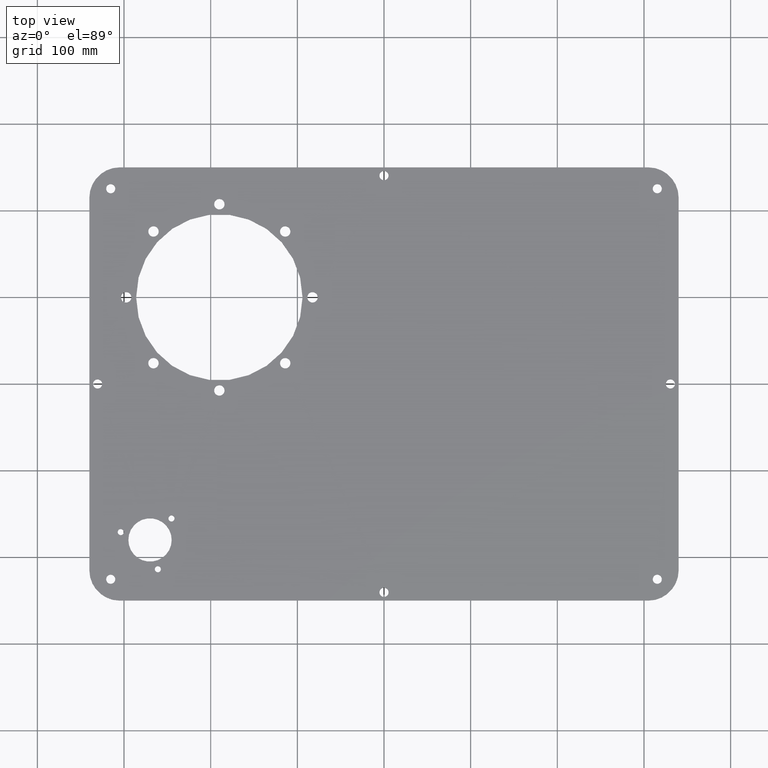
[diagram: clean part render]
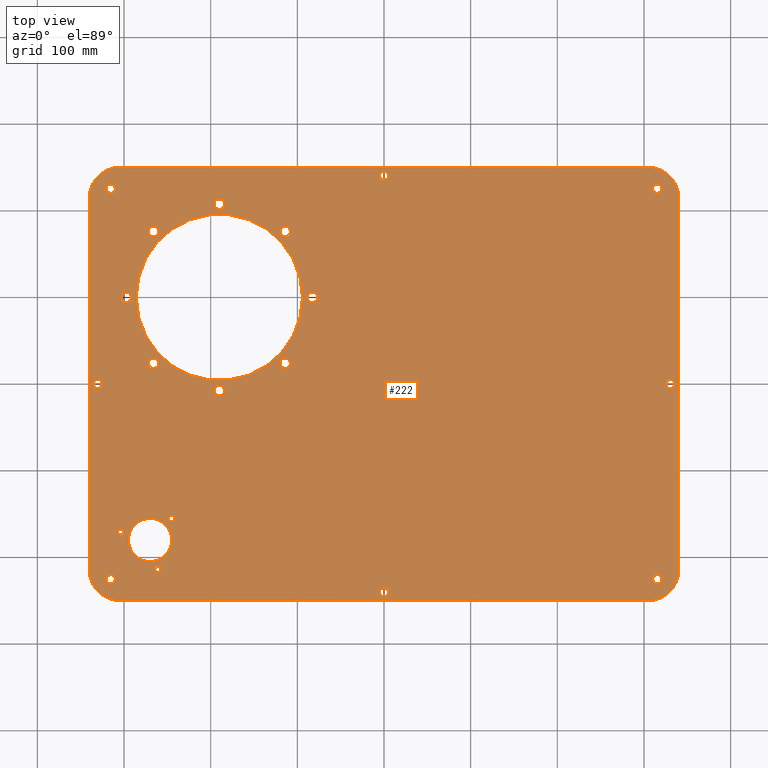
[diagram: same view with one face highlighted and labeled with its STEP entity id]
A machine part, top view. The second image highlights one B-rep face of the part: STEP entity #222.
In plain terms, the highlighted planar face has unit normal (0, 0, 1).
Its self-contained STEP definition (entity closure, byte-faithful):
#76=FACE_BOUND('',#291,.T.);
#77=FACE_BOUND('',#292,.T.);
#78=FACE_BOUND('',#293,.T.);
#79=FACE_BOUND('',#294,.T.);
#80=FACE_BOUND('',#295,.T.);
#81=FACE_BOUND('',#296,.T.);
#82=FACE_BOUND('',#297,.T.);
#83=FACE_BOUND('',#298,.T.);
#84=FACE_BOUND('',#299,.T.);
#85=FACE_BOUND('',#300,.T.);
#86=FACE_BOUND('',#301,.T.);
#87=FACE_BOUND('',#302,.T.);
#88=FACE_BOUND('',#303,.T.);
#89=FACE_BOUND('',#304,.T.);
#90=FACE_BOUND('',#305,.T.);
#91=FACE_BOUND('',#306,.T.);
#92=FACE_BOUND('',#307,.T.);
#93=FACE_BOUND('',#308,.T.);
#94=FACE_BOUND('',#309,.T.);
#95=FACE_BOUND('',#310,.T.);
#96=FACE_BOUND('',#311,.T.);
#144=CIRCLE('',#625,35.);
#146=CIRCLE('',#629,35.);
#148=CIRCLE('',#633,35.);
#149=CIRCLE('',#636,6.);
#151=CIRCLE('',#639,5.25);
#153=CIRCLE('',#642,5.25);
#155=CIRCLE('',#645,96.);
#157=CIRCLE('',#648,6.);
#159=CIRCLE('',#651,6.);
#161=CIRCLE('',#654,5.25);
#163=CIRCLE('',#657,5.25);
#165=CIRCLE('',#660,5.25);
#167=CIRCLE('',#663,25.);
#169=CIRCLE('',#666,3.5);
#171=CIRCLE('',#669,5.25);
#173=CIRCLE('',#672,5.25);
#175=CIRCLE('',#675,5.25);
#177=CIRCLE('',#678,6.);
#179=CIRCLE('',#681,6.);
#181=CIRCLE('',#684,6.);
#183=CIRCLE('',#687,6.);
#185=CIRCLE('',#690,3.5);
#187=CIRCLE('',#693,3.5);
#190=CIRCLE('',#697,35.);
#191=CIRCLE('',#699,6.);
#222=ADVANCED_FACE('',(#238,#76,#77,#78,#79,#80,#81,#82,#83,#84,#85,#86,
#87,#88,#89,#90,#91,#92,#93,#94,#95,#96),#228,.T.);
#228=PLANE('',#702);
#238=FACE_OUTER_BOUND('',#290,.T.);
#290=EDGE_LOOP('',(#408,#409,#410,#411,#412,#413,#414,#415));
#291=EDGE_LOOP('',(#416));
#292=EDGE_LOOP('',(#417));
#293=EDGE_LOOP('',(#418));
#294=EDGE_LOOP('',(#419));
#295=EDGE_LOOP('',(#420));
#296=EDGE_LOOP('',(#421));
#297=EDGE_LOOP('',(#422));
#298=EDGE_LOOP('',(#423));
#299=EDGE_LOOP('',(#424));
#300=EDGE_LOOP('',(#425));
#301=EDGE_LOOP('',(#426));
#302=EDGE_LOOP('',(#427));
#303=EDGE_LOOP('',(#428));
#304=EDGE_LOOP('',(#429));
#305=EDGE_LOOP('',(#430));
#306=EDGE_LOOP('',(#431));
#307=EDGE_LOOP('',(#432));
#308=EDGE_LOOP('',(#433));
#309=EDGE_LOOP('',(#434));
#310=EDGE_LOOP('',(#435));
#311=EDGE_LOOP('',(#436));
#408=ORIENTED_EDGE('',*,*,#526,.T.);
#409=ORIENTED_EDGE('',*,*,#530,.T.);
#410=ORIENTED_EDGE('',*,*,#533,.T.);
#411=ORIENTED_EDGE('',*,*,#536,.T.);
#412=ORIENTED_EDGE('',*,*,#539,.T.);
#413=ORIENTED_EDGE('',*,*,#542,.T.);
#414=ORIENTED_EDGE('',*,*,#545,.T.);
#415=ORIENTED_EDGE('',*,*,#587,.T.);
#416=ORIENTED_EDGE('',*,*,#584,.T.);
#417=ORIENTED_EDGE('',*,*,#582,.T.);
#418=ORIENTED_EDGE('',*,*,#580,.F.);
#419=ORIENTED_EDGE('',*,*,#578,.F.);
#420=ORIENTED_EDGE('',*,*,#576,.F.);
#421=ORIENTED_EDGE('',*,*,#574,.F.);
#422=ORIENTED_EDGE('',*,*,#572,.F.);
#423=ORIENTED_EDGE('',*,*,#570,.T.);
#424=ORIENTED_EDGE('',*,*,#568,.F.);
#425=ORIENTED_EDGE('',*,*,#566,.T.);
#426=ORIENTED_EDGE('',*,*,#564,.T.);
#427=ORIENTED_EDGE('',*,*,#562,.T.);
#428=ORIENTED_EDGE('',*,*,#560,.F.);
#429=ORIENTED_EDGE('',*,*,#558,.F.);
#430=ORIENTED_EDGE('',*,*,#556,.F.);
#431=ORIENTED_EDGE('',*,*,#554,.F.);
#432=ORIENTED_EDGE('',*,*,#552,.F.);
#433=ORIENTED_EDGE('',*,*,#550,.T.);
#434=ORIENTED_EDGE('',*,*,#548,.T.);
#435=ORIENTED_EDGE('',*,*,#546,.F.);
#436=ORIENTED_EDGE('',*,*,#588,.F.);
#468=VERTEX_POINT('',#889);
#469=VERTEX_POINT('',#891);
#471=VERTEX_POINT('',#897);
#473=VERTEX_POINT('',#903);
#475=VERTEX_POINT('',#909);
#477=VERTEX_POINT('',#915);
#479=VERTEX_POINT('',#921);
#481=VERTEX_POINT('',#927);
#482=VERTEX_POINT('',#931);
#484=VERTEX_POINT('',#936);
#486=VERTEX_POINT('',#941);
#488=VERTEX_POINT('',#946);
#490=VERTEX_POINT('',#951);
#492=VERTEX_POINT('',#956);
#494=VERTEX_POINT('',#961);
#496=VERTEX_POINT('',#966);
#498=VERTEX_POINT('',#971);
#500=VERTEX_POINT('',#976);
#502=VERTEX_POINT('',#981);
#504=VERTEX_POINT('',#986);
#506=VERTEX_POINT('',#991);
#508=VERTEX_POINT('',#996);
#510=VERTEX_POINT('',#1001);
#512=VERTEX_POINT('',#1006);
#514=VERTEX_POINT('',#1011);
#516=VERTEX_POINT('',#1016);
#518=VERTEX_POINT('',#1021);
#520=VERTEX_POINT('',#1026);
#522=VERTEX_POINT('',#1034);
#526=EDGE_CURVE('',#469,#468,#592,.T.);
#530=EDGE_CURVE('',#468,#471,#144,.T.);
#533=EDGE_CURVE('',#471,#473,#597,.T.);
#536=EDGE_CURVE('',#473,#475,#146,.T.);
#539=EDGE_CURVE('',#475,#477,#601,.T.);
#542=EDGE_CURVE('',#477,#479,#148,.T.);
#545=EDGE_CURVE('',#479,#481,#605,.T.);
#546=EDGE_CURVE('',#482,#482,#149,.T.);
#548=EDGE_CURVE('',#484,#484,#151,.T.);
#550=EDGE_CURVE('',#486,#486,#153,.T.);
#552=EDGE_CURVE('',#488,#488,#155,.T.);
#554=EDGE_CURVE('',#490,#490,#157,.T.);
#556=EDGE_CURVE('',#492,#492,#159,.T.);
#558=EDGE_CURVE('',#494,#494,#161,.T.);
#560=EDGE_CURVE('',#496,#496,#163,.T.);
#562=EDGE_CURVE('',#498,#498,#165,.T.);
#564=EDGE_CURVE('',#500,#500,#167,.T.);
#566=EDGE_CURVE('',#502,#502,#169,.T.);
#568=EDGE_CURVE('',#504,#504,#171,.T.);
#570=EDGE_CURVE('',#506,#506,#173,.T.);
#572=EDGE_CURVE('',#508,#508,#175,.T.);
#574=EDGE_CURVE('',#510,#510,#177,.T.);
#576=EDGE_CURVE('',#512,#512,#179,.T.);
#578=EDGE_CURVE('',#514,#514,#181,.T.);
#580=EDGE_CURVE('',#516,#516,#183,.T.);
#582=EDGE_CURVE('',#518,#518,#185,.T.);
#584=EDGE_CURVE('',#520,#520,#187,.T.);
#587=EDGE_CURVE('',#481,#469,#190,.T.);
#588=EDGE_CURVE('',#522,#522,#191,.T.);
#592=LINE('',#890,#608);
#597=LINE('',#904,#613);
#601=LINE('',#916,#617);
#605=LINE('',#928,#621);
#608=VECTOR('',#708,1.);
#613=VECTOR('',#721,1.);
#617=VECTOR('',#733,1.);
#621=VECTOR('',#745,1.);
#625=AXIS2_PLACEMENT_3D('',#898,#715,#716);
#629=AXIS2_PLACEMENT_3D('',#910,#727,#728);
#633=AXIS2_PLACEMENT_3D('',#922,#739,#740);
#636=AXIS2_PLACEMENT_3D('',#930,#748,#749);
#639=AXIS2_PLACEMENT_3D('',#935,#754,#755);
#642=AXIS2_PLACEMENT_3D('',#940,#760,#761);
#645=AXIS2_PLACEMENT_3D('',#945,#766,#767);
#648=AXIS2_PLACEMENT_3D('',#950,#772,#773);
#651=AXIS2_PLACEMENT_3D('',#955,#778,#779);
#654=AXIS2_PLACEMENT_3D('',#960,#784,#785);
#657=AXIS2_PLACEMENT_3D('',#965,#790,#791);
#660=AXIS2_PLACEMENT_3D('',#970,#796,#797);
#663=AXIS2_PLACEMENT_3D('',#975,#802,#803);
#666=AXIS2_PLACEMENT_3D('',#980,#808,#809);
#669=AXIS2_PLACEMENT_3D('',#985,#814,#815);
#672=AXIS2_PLACEMENT_3D('',#990,#820,#821);
#675=AXIS2_PLACEMENT_3D('',#995,#826,#827);
#678=AXIS2_PLACEMENT_3D('',#1000,#832,#833);
#681=AXIS2_PLACEMENT_3D('',#1005,#838,#839);
#684=AXIS2_PLACEMENT_3D('',#1010,#844,#845);
#687=AXIS2_PLACEMENT_3D('',#1015,#850,#851);
#690=AXIS2_PLACEMENT_3D('',#1020,#856,#857);
#693=AXIS2_PLACEMENT_3D('',#1025,#862,#863);
#697=AXIS2_PLACEMENT_3D('',#1031,#870,#871);
#699=AXIS2_PLACEMENT_3D('',#1033,#874,#875);
#702=AXIS2_PLACEMENT_3D('',#1038,#880,#881);
#708=DIRECTION('',(0.,-1.,0.));
#715=DIRECTION('',(0.,0.,1.));
#716=DIRECTION('',(0.999999999999999,0.,0.));
#721=DIRECTION('',(1.,0.,0.));
#727=DIRECTION('',(0.,0.,1.));
#728=DIRECTION('',(0.999999999999999,0.,0.));
#733=DIRECTION('',(0.,1.,0.));
#739=DIRECTION('',(0.,0.,1.));
#740=DIRECTION('',(0.999999999999999,0.,0.));
#745=DIRECTION('',(-1.,0.,0.));
#748=DIRECTION('',(0.,0.,1.));
#749=DIRECTION('',(1.,0.,0.));
#754=DIRECTION('',(0.,0.,-1.));
#755=DIRECTION('',(-0.999999999999996,0.,0.));
#760=DIRECTION('',(0.,0.,-1.));
#761=DIRECTION('',(1.,0.,0.));
#766=DIRECTION('',(0.,0.,1.));
#767=DIRECTION('',(1.,0.,0.));
#772=DIRECTION('',(0.,0.,1.));
#773=DIRECTION('',(-0.707106781186545,-0.707106781186536,0.));
#778=DIRECTION('',(0.,0.,1.));
#779=DIRECTION('',(0.707106781186547,0.707106781186536,0.));
#784=DIRECTION('',(0.,0.,1.));
#785=DIRECTION('',(1.,0.,0.));
#790=DIRECTION('',(0.,0.,1.));
#791=DIRECTION('',(0.999999999999996,0.,0.));
#796=DIRECTION('',(0.,0.,-1.));
#797=DIRECTION('',(0.999999999999996,0.,0.));
#802=DIRECTION('',(0.,0.,-1.));
#803=DIRECTION('',(-1.,0.,0.));
#808=DIRECTION('',(0.,0.,-1.));
#809=DIRECTION('',(0.707106781186549,0.707106781186541,0.));
#814=DIRECTION('',(0.,0.,1.));
#815=DIRECTION('',(0.999999999999996,0.,0.));
#820=DIRECTION('',(0.,0.,-1.));
#821=DIRECTION('',(-0.999999999999996,0.,0.));
#826=DIRECTION('',(0.,0.,1.));
#827=DIRECTION('',(-0.999999999999996,0.,0.));
#832=DIRECTION('',(0.,0.,1.));
#833=DIRECTION('',(-0.707106781186545,0.707106781186536,0.));
#838=DIRECTION('',(0.,0.,1.));
#839=DIRECTION('',(0.707106781186547,-0.707106781186536,0.));
#844=DIRECTION('',(0.,0.,1.));
#845=DIRECTION('',(0.,-1.,0.));
#850=DIRECTION('',(0.,0.,1.));
#851=DIRECTION('',(-1.,0.,0.));
#856=DIRECTION('',(0.,0.,-1.));
#857=DIRECTION('',(-0.965925826289071,0.258819045102499,0.));
#862=DIRECTION('',(0.,0.,-1.));
#863=DIRECTION('',(0.25881904510253,-0.96592582628904,0.));
#870=DIRECTION('',(0.,0.,1.));
#871=DIRECTION('',(0.999999999999999,0.,0.));
#874=DIRECTION('',(0.,0.,1.));
#875=DIRECTION('',(0.,1.,0.));
#880=DIRECTION('',(0.,0.,1.));
#881=DIRECTION('',(1.,0.,0.));
#889=CARTESIAN_POINT('',(-340.,-2115.,4.));
#890=CARTESIAN_POINT('',(-340.,-1685.,4.));
#891=CARTESIAN_POINT('',(-340.,-1685.,4.));
#897=CARTESIAN_POINT('',(-305.,-2150.,4.));
#898=CARTESIAN_POINT('',(-305.,-2115.,4.));
#903=CARTESIAN_POINT('',(305.,-2150.,4.));
#904=CARTESIAN_POINT('',(-305.,-2150.,4.));
#909=CARTESIAN_POINT('',(340.,-2115.,4.));
#910=CARTESIAN_POINT('',(305.,-2115.,4.));
#915=CARTESIAN_POINT('',(340.,-1685.,4.));
#916=CARTESIAN_POINT('',(340.,-2115.,4.));
#921=CARTESIAN_POINT('',(305.,-1650.,4.));
#922=CARTESIAN_POINT('',(305.,-1685.,4.));
#927=CARTESIAN_POINT('',(-305.,-1650.,4.));
#928=CARTESIAN_POINT('',(305.,-1650.,4.));
#930=CARTESIAN_POINT('',(-82.4999999999989,-1800.,4.));
#931=CARTESIAN_POINT('',(-76.4999999999989,-1800.,4.));
#935=CARTESIAN_POINT('',(315.370057685089,-1674.62994231491,4.));
#936=CARTESIAN_POINT('',(310.120057685089,-1674.62994231491,4.));
#940=CARTESIAN_POINT('',(0.,-2140.5,4.));
#941=CARTESIAN_POINT('',(5.25,-2140.5,4.));
#945=CARTESIAN_POINT('',(-190.,-1800.,4.));
#946=CARTESIAN_POINT('',(-94.,-1800.,4.));
#950=CARTESIAN_POINT('',(-266.013978977554,-1876.01397897755,4.));
#951=CARTESIAN_POINT('',(-270.256619664674,-1880.25661966467,4.));
#955=CARTESIAN_POINT('',(-113.986021022446,-1723.98602102245,4.));
#956=CARTESIAN_POINT('',(-109.743380335327,-1719.74338033533,4.));
#960=CARTESIAN_POINT('',(0.,-1659.5,4.));
#961=CARTESIAN_POINT('',(5.25,-1659.5,4.));
#965=CARTESIAN_POINT('',(-330.5,-1900.,4.));
#966=CARTESIAN_POINT('',(-325.25,-1900.,4.));
#970=CARTESIAN_POINT('',(-315.370057685089,-2125.37005768509,4.));
#971=CARTESIAN_POINT('',(-310.120057685089,-2125.37005768509,4.));
#975=CARTESIAN_POINT('',(-270.,-2080.,4.));
#976=CARTESIAN_POINT('',(-295.,-2080.,4.));
#980=CARTESIAN_POINT('',(-245.251262658473,-2055.25126265847,4.));
#981=CARTESIAN_POINT('',(-242.77638892432,-2052.77638892432,4.));
#985=CARTESIAN_POINT('',(-315.370057685089,-1674.62994231491,4.));
#986=CARTESIAN_POINT('',(-310.120057685089,-1674.62994231491,4.));
#990=CARTESIAN_POINT('',(330.5,-1900.,4.));
#991=CARTESIAN_POINT('',(325.25,-1900.,4.));
#995=CARTESIAN_POINT('',(315.370057685089,-2125.37005768509,4.));
#996=CARTESIAN_POINT('',(310.120057685089,-2125.37005768509,4.));
#1000=CARTESIAN_POINT('',(-266.013978977554,-1723.98602102244,4.));
#1001=CARTESIAN_POINT('',(-270.256619664673,-1719.74338033533,4.));
#1005=CARTESIAN_POINT('',(-113.986021022445,-1876.01397897755,4.));
#1006=CARTESIAN_POINT('',(-109.743380335326,-1880.25661966467,4.));
#1010=CARTESIAN_POINT('',(-190.000000000435,-1907.49999999996,4.));
#1011=CARTESIAN_POINT('',(-190.000000000435,-1913.49999999996,4.));
#1015=CARTESIAN_POINT('',(-297.499999999999,-1800.,4.));
#1016=CARTESIAN_POINT('',(-303.499999999999,-1800.,4.));
#1020=CARTESIAN_POINT('',(-303.807403920117,-2070.94133342141,4.));
#1021=CARTESIAN_POINT('',(-307.188144312129,-2070.03546676355,4.));
#1025=CARTESIAN_POINT('',(-260.941333421412,-2113.80740392012,4.));
#1026=CARTESIAN_POINT('',(-260.035466763553,-2117.18814431213,4.));
#1031=CARTESIAN_POINT('',(-305.,-1685.,4.));
#1033=CARTESIAN_POINT('',(-189.999999999998,-1692.5,4.));
#1034=CARTESIAN_POINT('',(-189.999999999998,-1686.5,4.));
#1038=CARTESIAN_POINT('',(-305.,-2115.,4.));